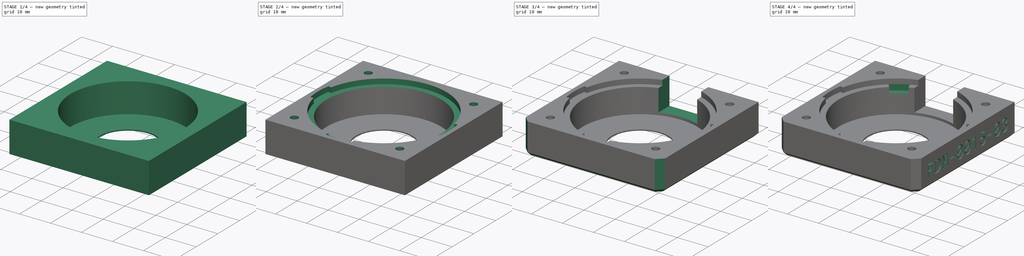
[diagram: build sequence overview — one tinted view per stage of 4, left to right]
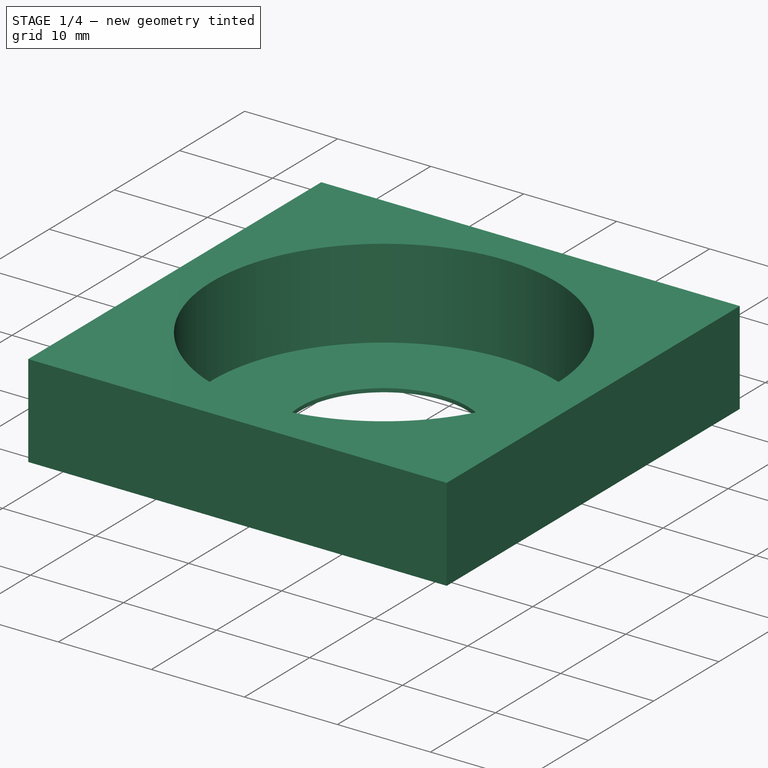
[diagram: stage 1 of 4 — iso view after this stage's code; geometry added in this stage tinted green]
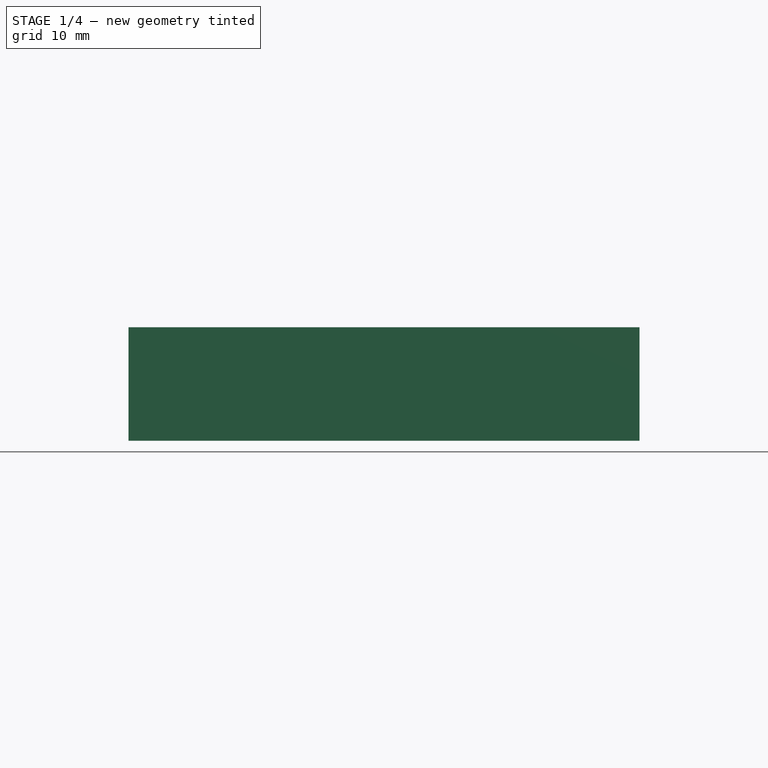
[diagram: stage 1 of 4 — front view after this stage's code; geometry added in this stage tinted green]
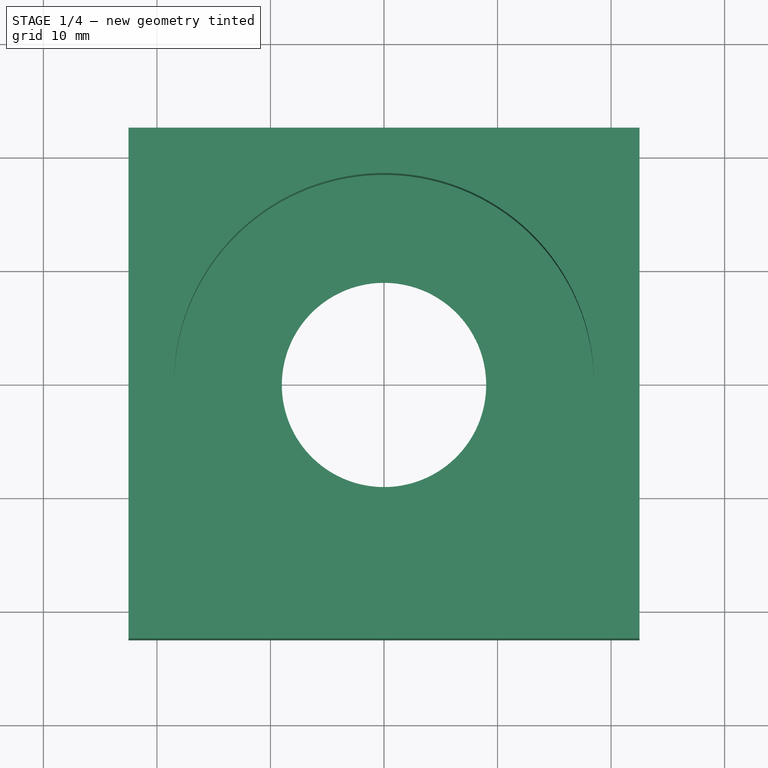
[diagram: stage 1 of 4 — top view after this stage's code; geometry added in this stage tinted green]
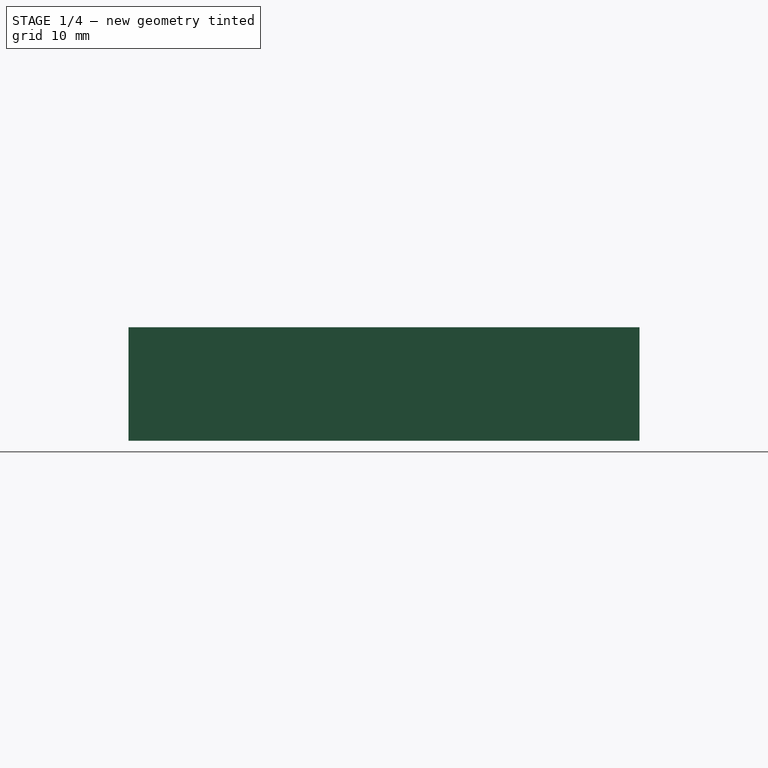
[diagram: stage 1 of 4 — right view after this stage's code; geometry added in this stage tinted green]
FCSTD DOCUMENT  (FreeCAD 0.19R24291 (Git))
Label: FDM-0015_down-light-mount
License: All rights reserved
LicenseURL: http://en.wikipedia.org/wiki/All_rights_reserved
objects: Sketcher::SketchObject×6, PartDesign::Pocket×4, PartDesign::Pad×2, PartDesign::Chamfer×2, PartDesign::Plane×2, PartDesign::Hole×1, Part::Part2DObjectPython×1, PartDesign::Body×1
note: 28 computed .brp shape members not serialized (recipe doc carries the construction recipe); baked Part::Feature solids carry a one-line shape summary decoded from their .brp

FEATURE [Sketcher::SketchObject] Sketch  label="Base"
  FullyConstrained = true
  MapMode = 5
  Support = -> [XY_Plane]
  sketch-geometry (5):
    g0: Circle CenterX=0 CenterY=0 CenterZ=0 NormalX=0 NormalY=0 NormalZ=1 AngleXU=0 Radius=18.5
    g1: LineSegment StartX=-22.5 StartY=22.5 StartZ=0 EndX=22.5 EndY=22.5 EndZ=0
    g2: LineSegment StartX=22.5 StartY=22.5 StartZ=0 EndX=22.5 EndY=-22.5 EndZ=0
    g3: LineSegment StartX=22.5 StartY=-22.5 StartZ=0 EndX=-22.5 EndY=-22.5 EndZ=0
    g4: LineSegment StartX=-22.5 StartY=-22.5 StartZ=0 EndX=-22.5 EndY=22.5 EndZ=0
  constraints (12):
    c: Coincident(g0,g-1)
    c: Coincident(g1,g2)
    c: Coincident(g2,g3)
    c: Coincident(g3,g4)
    c: Coincident(g4,g1)
    c: Horizontal(g3)
    c: Vertical(g2)
    c: Symmetric(g1,g1,g-2)
    c: Symmetric(g1,g3,g-1)
    c: DistanceX(g1,g1) = 45
    c: DistanceY(g4,g4) = 45
    c: Diameter(g0) = 37
FEATURE [PartDesign::Pad] Pad
  AllowMultiFace = false
  Direction = (0,0,1)
  Length = 10
  Length2 = 100
  Profile = -> Sketch
  Type = 0
FEATURE [Sketcher::SketchObject] Sketch001
  FullyConstrained = true
  MapMode = 5
  Support = -> [XY_Plane]
  sketch-geometry (2):
    g0: Circle CenterX=0 CenterY=0 CenterZ=0 NormalX=0 NormalY=0 NormalZ=1 AngleXU=0 Radius=18.5
    g1: Circle CenterX=0 CenterY=0 CenterZ=0 NormalX=0 NormalY=0 NormalZ=1 AngleXU=0 Radius=9
  constraints (4):
    c: Coincident(g0,g-1)
    c: Coincident(g1,g0)
    c: Diameter(g0) = 37
    c: Diameter(g1) = 18
FEATURE [PartDesign::Pad] Pad001
  AllowMultiFace = false
  BaseFeature = -> Pad
  Direction = (0,0,1)
  Length = 0.4
  Length2 = 100
  Profile = -> Sketch001
  Type = 0
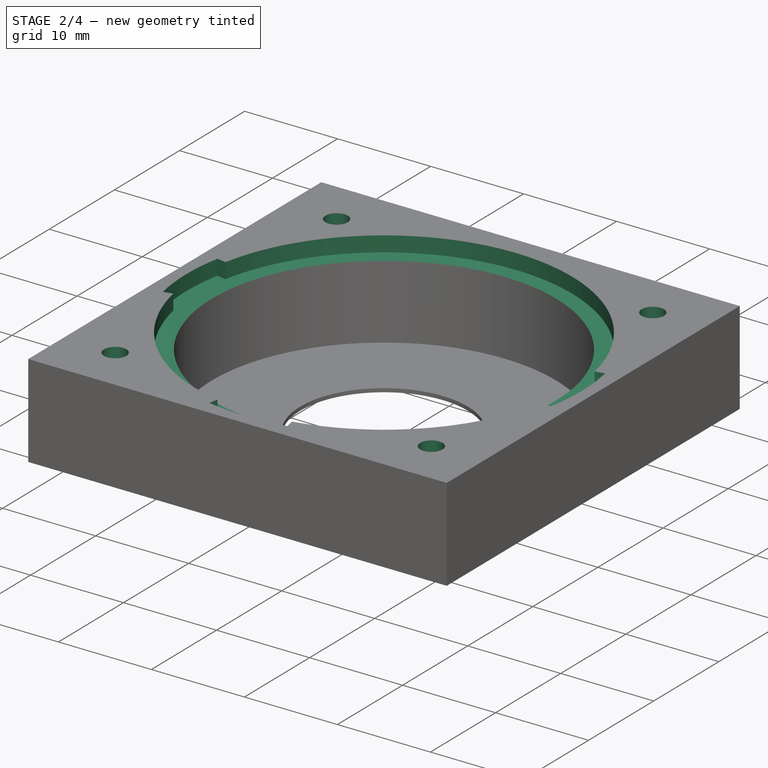
[diagram: stage 2 of 4 — iso view after this stage's code; geometry added in this stage tinted green]
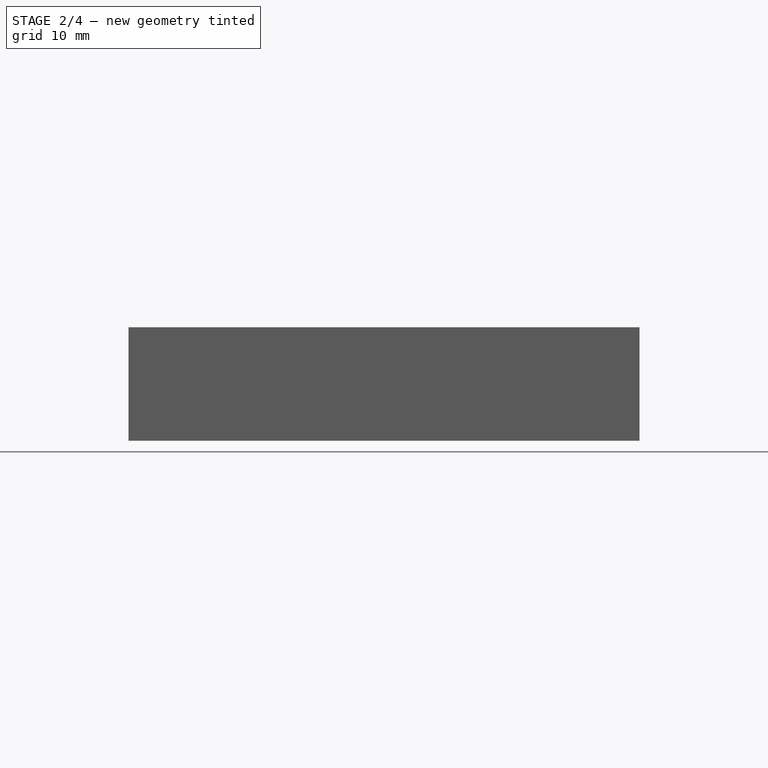
[diagram: stage 2 of 4 — front view after this stage's code; geometry added in this stage tinted green]
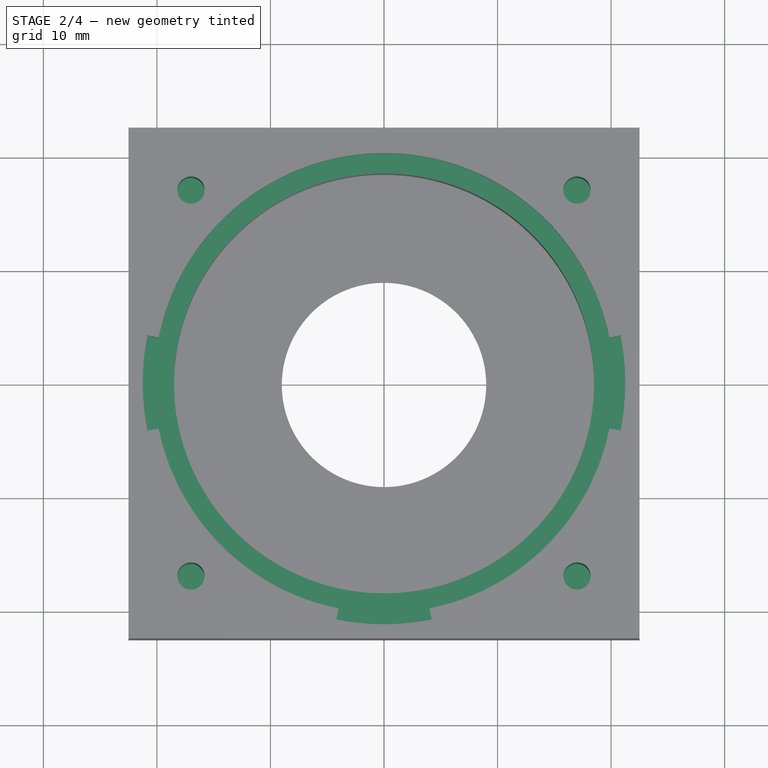
[diagram: stage 2 of 4 — top view after this stage's code; geometry added in this stage tinted green]
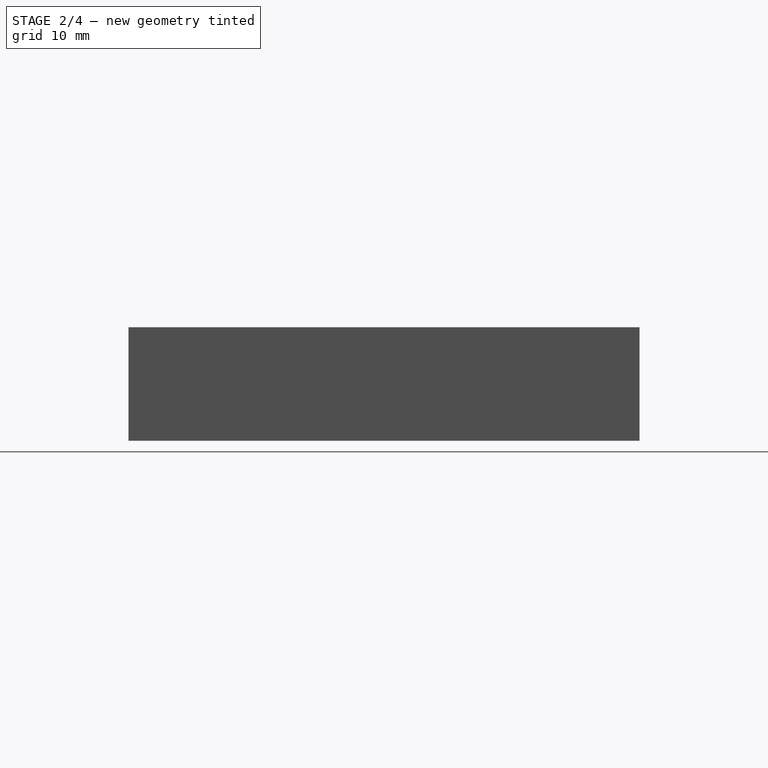
[diagram: stage 2 of 4 — right view after this stage's code; geometry added in this stage tinted green]
FEATURE [Sketcher::SketchObject] Sketch002  label="PCB"
  FullyConstrained = true
  MapMode = 2
  Placement = pos=(0,0,10) rot=(0,0,1;0rad)
  sketch-geometry (14):
    g0: Circle CenterX=0 CenterY=0 CenterZ=0 NormalX=0 NormalY=0 NormalZ=1 AngleXU=0 Radius=20.25
    g1: Circle CenterX=0 CenterY=0 CenterZ=0 NormalX=0 NormalY=0 NormalZ=1 AngleXU=0 Radius=21.25
    g2: ArcOfCircle CenterX=2e-16 CenterY=1e-16 CenterZ=0 NormalX=0 NormalY=0 NormalZ=1 AngleXU=0 Radius=20.25 StartAngle=0.198839 EndAngle=2.94275
    g3: ArcOfCircle CenterX=-3.4e-15 CenterY=-1e-16 CenterZ=0 NormalX=0 NormalY=0 NormalZ=1 AngleXU=0 Radius=20.25 StartAngle=3.34043 EndAngle=4.51355
    g4: ArcOfCircle CenterX=-8.6e-15 CenterY=4.7e-15 CenterZ=0 NormalX=0 NormalY=0 NormalZ=1 AngleXU=0 Radius=20.25 StartAngle=4.91123 EndAngle=6.08435
    g5: ArcOfCircle CenterX=-5.5e-14 CenterY=-5.8e-15 CenterZ=0 NormalX=0 NormalY=0 NormalZ=1 AngleXU=0 Radius=21.25 StartAngle=2.94275 EndAngle=3.34043
    g6: ArcOfCircle CenterX=4.79e-14 CenterY=-5.7e-15 CenterZ=0 NormalX=0 NormalY=0 NormalZ=1 AngleXU=0 Radius=21.25 StartAngle=6.08435 EndAngle=6.48202
    g7: ArcOfCircle CenterX=5.7e-15 CenterY=-6.9e-15 CenterZ=0 NormalX=0 NormalY=0 NormalZ=1 AngleXU=0 Radius=21.25 StartAngle=4.51355 EndAngle=4.91123
    g8: LineSegment StartX=-4.19753 StartY=-20.8313 StartZ=0 EndX=-4 EndY=-19.851 EndZ=0
    g9: LineSegment StartX=4.19753 StartY=-20.8313 StartZ=0 EndX=4 EndY=-19.851 EndZ=0
    g10: LineSegment StartX=-20.8313 StartY=-4.19753 StartZ=0 EndX=-19.851 EndY=-4 EndZ=0
    g11: LineSegment StartX=-20.8313 StartY=4.19753 StartZ=0 EndX=-19.851 EndY=4 EndZ=0
    g12: LineSegment StartX=19.851 StartY=4 StartZ=0 EndX=20.8313 EndY=4.19753 EndZ=0
    g13: LineSegment StartX=19.851 StartY=-4 StartZ=0 EndX=20.8313 EndY=-4.19753 EndZ=0
  constraints (46):
    c: Coincident(g0,g-1)
    c: Diameter(g0) = 40.5
    c: Coincident(g1,g0)
    c: Diameter(g1) = 42.5
    c: PointOnObject(g2,g0)
    c: PointOnObject(g2,g0)
    c: Tangent(g2,g0)
    c: PointOnObject(g3,g0)
    c: PointOnObject(g3,g0)
    c: Tangent(g3,g0)
    c: PointOnObject(g4,g0)
    c: PointOnObject(g4,g0)
    c: Tangent(g4,g0)
    c: PointOnObject(g5,g1)
    c: PointOnObject(g5,g1)
    c: Tangent(g5,g1)
    c: PointOnObject(g6,g1)
    c: PointOnObject(g6,g1)
    c: Tangent(g6,g1)
    c: PointOnObject(g7,g1)
    c: PointOnObject(g7,g1)
    c: Tangent(g7,g1)
    c: Coincident(g8,g7)
    c: Coincident(g8,g3)
    c: Coincident(g9,g7)
    c: Coincident(g9,g4)
    c: Coincident(g10,g5)
    c: Coincident(g10,g3)
    c: Coincident(g11,g5)
    c: Coincident(g11,g2)
    c: Coincident(g12,g2)
    c: Coincident(g12,g6)
    c: Coincident(g13,g4)
    c: Coincident(g13,g6)
    c: Distance(g3,g2) = 8
    c: Perpendicular(g3,g10)
    c: Perpendicular(g0,g11)
    c: DistanceY(g3,g2) = 4
    c: Horizontal(g3,g4)
    c: Perpendicular(g4,g13)
    c: Perpendicular(g2,g12)
    c: Horizontal(g2,g2)
    c: Perpendicular(g3,g8)
    c: Perpendicular(g4,g9)
    c: DistanceX(g3,g4) = 8
    c: DistanceX(g3,g-1) = 4
FEATURE [PartDesign::Pocket] Pocket  label="pkt_pcb"
  AllowMultiFace = false
  BaseFeature = -> Pad001
  Length = 1.65
  Length2 = 100
  Profile = -> Sketch002
  Type = 0
FEATURE [Sketcher::SketchObject] Sketch003
  FullyConstrained = true
  MapMode = 2
  Placement = pos=(0,0,10) rot=(0,0,1;0rad)
  sketch-geometry (8):
    g0: LineSegment StartX=-17 StartY=17 StartZ=0 EndX=17 EndY=17 EndZ=0
    g1: LineSegment StartX=17 StartY=17 StartZ=0 EndX=17 EndY=-17 EndZ=0
    g2: LineSegment StartX=17 StartY=-17 StartZ=0 EndX=-17 EndY=-17 EndZ=0
    g3: LineSegment StartX=-17 StartY=-17 StartZ=0 EndX=-17 EndY=17 EndZ=0
    g4: Circle CenterX=-17 CenterY=17 CenterZ=0 NormalX=0 NormalY=0 NormalZ=1 AngleXU=0 Radius=1
    g5: Circle CenterX=-17 CenterY=-17 CenterZ=0 NormalX=0 NormalY=0 NormalZ=1 AngleXU=0 Radius=1
    g6: Circle CenterX=17 CenterY=-17 CenterZ=0 NormalX=0 NormalY=0 NormalZ=1 AngleXU=0 Radius=1
    g7: Circle CenterX=17 CenterY=17 CenterZ=0 NormalX=0 NormalY=0 NormalZ=1 AngleXU=0 Radius=1
  constraints (18):
    c: Coincident(g0,g1)
    c: Coincident(g1,g2)
    c: Coincident(g2,g3)
    c: Coincident(g3,g0)
    c: Horizontal(g2)
    c: Vertical(g1)
    c: Symmetric(g0,g0,g-2)
    c: Symmetric(g0,g2,g-1)
    c: Equal(g0,g3)
    c: Coincident(g4,g0)
    c: Coincident(g5,g2)
    c: Coincident(g6,g1)
    c: Coincident(g7,g0)
    c: Diameter(g7) = 2
    c: DistanceX(g0,g0) = 34
    c: Equal(g5,g6)
    c: Equal(g6,g7)
    c: Equal(g7,g4)
FEATURE [Sketcher::SketchObject] Sketch004  label="JSTConnector"
  FullyConstrained = true
  MapMode = 2
  Placement = pos=(0,0,10) rot=(0,0,1;0rad)
  sketch-geometry (4):
    g0: LineSegment StartX=-6.25 StartY=0 StartZ=0 EndX=6.25 EndY=0 EndZ=0
    g1: LineSegment StartX=6.25 StartY=0 StartZ=0 EndX=6.25 EndY=25 EndZ=0
    g2: LineSegment StartX=6.25 StartY=25 StartZ=0 EndX=-6.25 EndY=25 EndZ=0
    g3: LineSegment StartX=-6.25 StartY=25 StartZ=0 EndX=-6.25 EndY=0 EndZ=0
  constraints (11):
    c: Coincident(g0,g1)
    c: Coincident(g1,g2)
    c: Coincident(g2,g3)
    c: Coincident(g3,g0)
    c: Horizontal(g0)
    c: Vertical(g1)
    c: Vertical(g3)
    c: PointOnObject(g0,g-1)
    c: DistanceX(g2,g2) = 12.5
    c: Symmetric(g2,g1,g-2)
    c: DistanceY(g3,g3) = 25
FEATURE [PartDesign::Hole] Hole
  BaseFeature = -> Pocket
  Depth = 8.5
  DepthType = 0
  Diameter = 2.4
  DrillForDepth = false
  DrillPoint = 0
  DrillPointAngle = 118
  HoleCutCountersinkAngle = 90
  HoleCutCustomValues = false
  HoleCutDepth = 0
  HoleCutDiameter = 6.1
  HoleCutType = 0
  ModelActualThread = false
  Profile = -> Sketch003
  Tapered = false
  TaperedAngle = 90
  ThreadAngle = 0
  ThreadClass = 0
  ThreadCutOffInner = 0
  ThreadCutOffOuter = 0
  ThreadDirection = 0
  ThreadFit = 0
  ThreadPitch = 0
  ThreadSize = 6
  ThreadType = 1
  Threaded = false
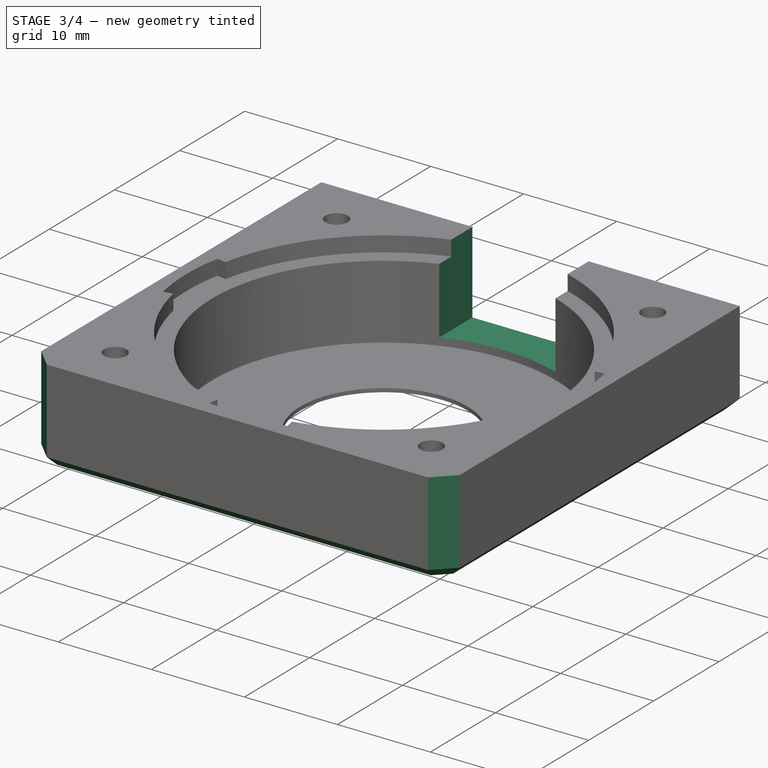
[diagram: stage 3 of 4 — iso view after this stage's code; geometry added in this stage tinted green]
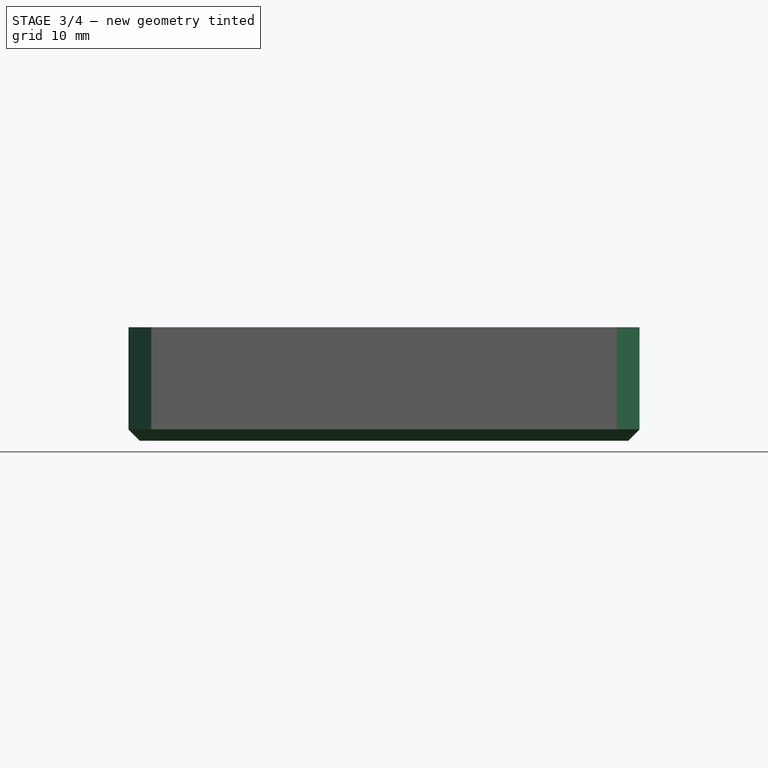
[diagram: stage 3 of 4 — front view after this stage's code; geometry added in this stage tinted green]
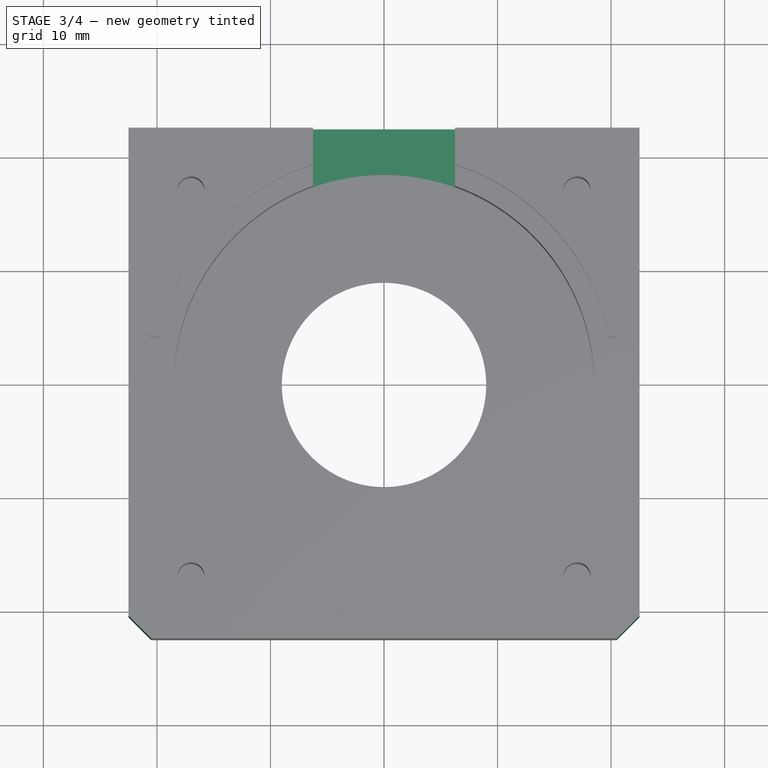
[diagram: stage 3 of 4 — top view after this stage's code; geometry added in this stage tinted green]
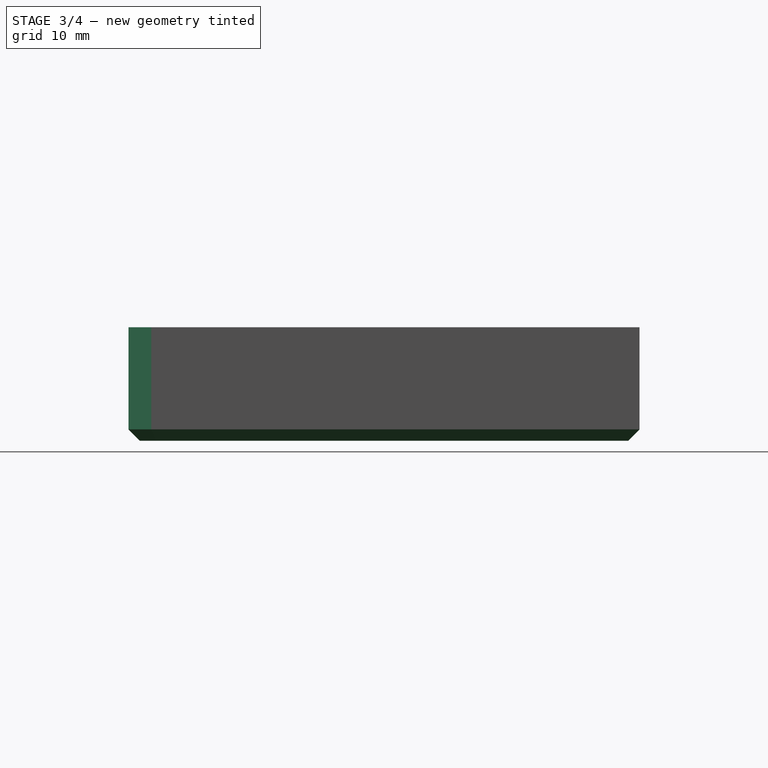
[diagram: stage 3 of 4 — right view after this stage's code; geometry added in this stage tinted green]
FEATURE [PartDesign::Chamfer] Chamfer
  Angle = 45
  Base = -> Hole [Edge8,Edge5]
  BaseFeature = -> Hole
  ChamferType = 0
  FlipDirection = false
  Size = 2
  Size2 = 1
  SupportTransform = false
FEATURE [PartDesign::Chamfer] Chamfer001
  Angle = 45
  Base = -> Chamfer [Edge1,Edge7,Edge5,Edge8,Edge9,Edge6]
  BaseFeature = -> Chamfer
  ChamferType = 0
  FlipDirection = false
  Size = 1
  Size2 = 1
  SupportTransform = false
FEATURE [PartDesign::Pocket] Pocket002  label="pkt_JSTConnector"
  AllowMultiFace = false
  BaseFeature = -> Chamfer001
  Length = 8.8
  Length2 = 100
  Profile = -> Sketch004
  Type = 0
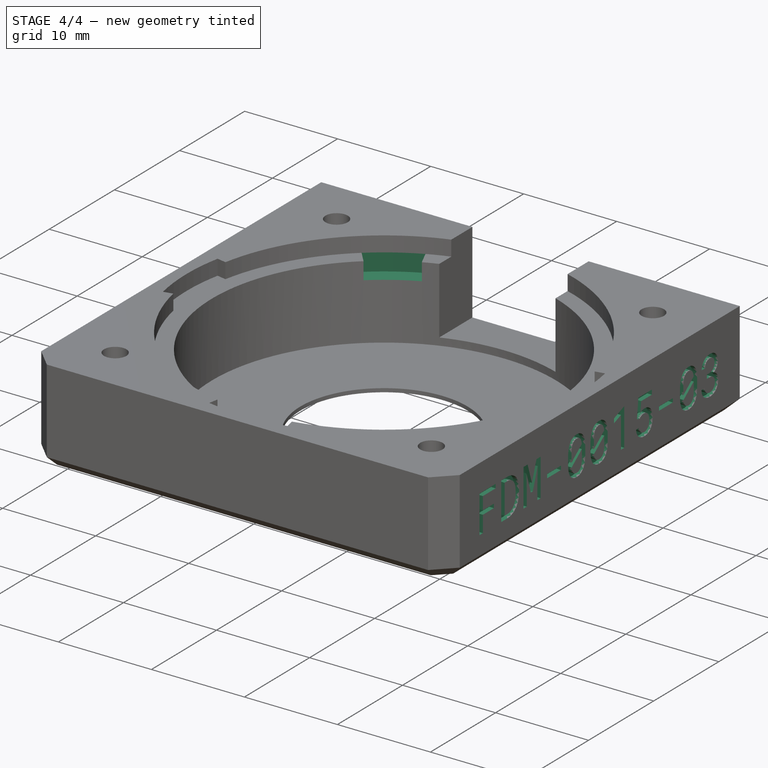
[diagram: stage 4 of 4 — iso view after this stage's code; geometry added in this stage tinted green]
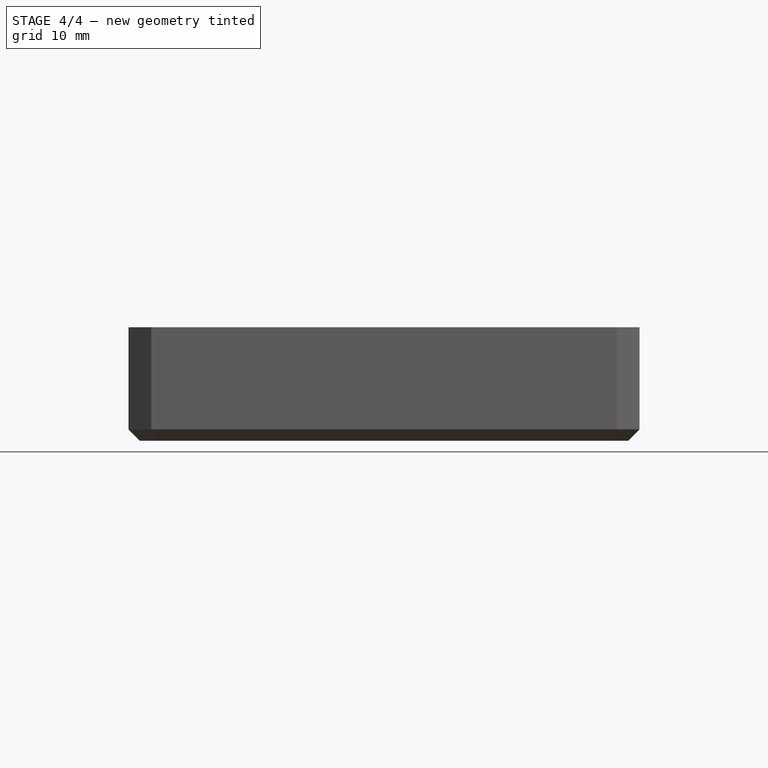
[diagram: stage 4 of 4 — front view after this stage's code; geometry added in this stage tinted green]
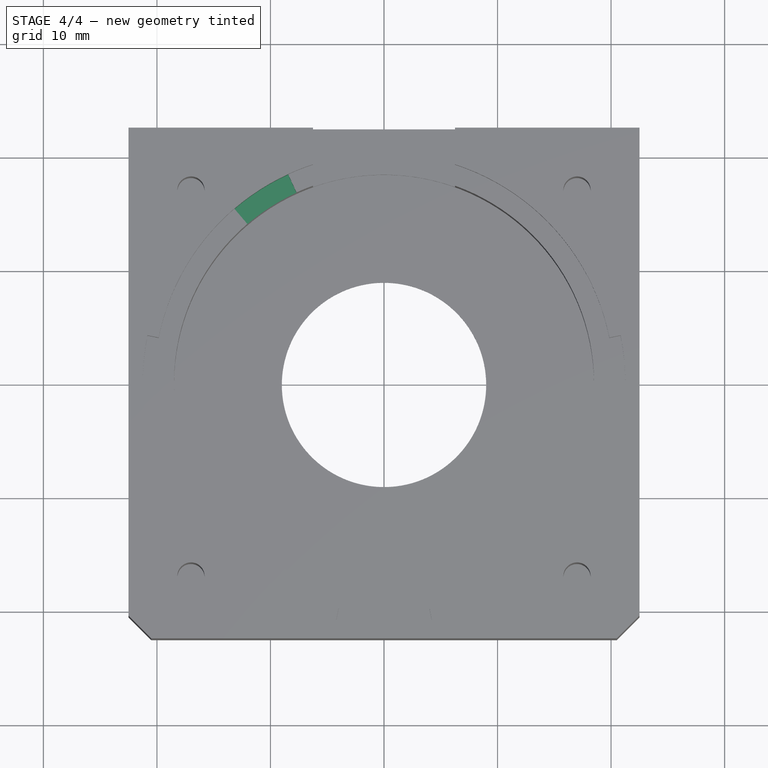
[diagram: stage 4 of 4 — top view after this stage's code; geometry added in this stage tinted green]
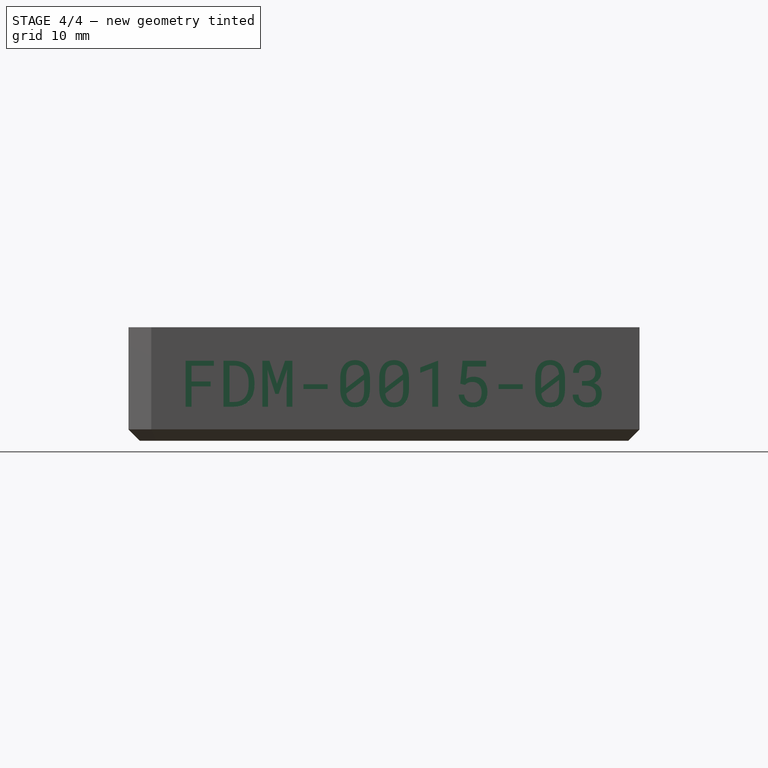
[diagram: stage 4 of 4 — right view after this stage's code; geometry added in this stage tinted green]
FEATURE [PartDesign::Plane] DatumPlane002  label="PrintPlane"
  Length = 60
  MapMode = 5
  Placement = pos=(0,0,0) rot=(1,0,0;3.14159rad)
  ResizeMode = 0
  Support = -> [Chamfer001]
  Width = 60
FEATURE [Sketcher::SketchObject] Sketch006  label="CutoutForCapacitor"
  AttachmentOffset = pos=(0,0,10) rot=(0,0,1;0rad)
  FullyConstrained = true
  MapMode = 5
  Placement = pos=(0,0,10) rot=(0,0,1;0rad)
  Support = -> [XY_Plane]
  sketch-geometry (6):
    g0: Circle CenterX=0 CenterY=0 CenterZ=0 NormalX=0 NormalY=0 NormalZ=1 AngleXU=0 Radius=20.25
    g1: Circle CenterX=0 CenterY=0 CenterZ=0 NormalX=0 NormalY=0 NormalZ=1 AngleXU=0 Radius=18
    g2: LineSegment StartX=-13.1759 StartY=15.3772 StartZ=0 EndX=-11.7119 EndY=13.6686 EndZ=0
    g3: LineSegment StartX=-8.4375 StartY=18.4085 StartZ=0 EndX=-7.5 EndY=16.3631 EndZ=0
    g4: ArcOfCircle CenterX=-2.2e-15 CenterY=1.36e-14 CenterZ=0 NormalX=0 NormalY=0 NormalZ=1 AngleXU=0 Radius=20.25 StartAngle=2.00057 EndAngle=2.27925
    g5: ArcOfCircle CenterX=-1.061e-13 CenterY=1.597e-13 CenterZ=0 NormalX=0 NormalY=0 NormalZ=1 AngleXU=0 Radius=18 StartAngle=2.00057 EndAngle=2.27925
  constraints (18):
    c: Coincident(g0,g-1)
    c: Diameter(g0) = 40.5
    c: Coincident(g1,g-1)
    c: Diameter(g1) = 36
    c: PointOnObject(g2,g0)
    c: PointOnObject(g2,g1)
    c: PointOnObject(g3,g0)
    c: PointOnObject(g3,g1)
    c: Coincident(g4,g2)
    c: Coincident(g4,g3)
    c: Tangent(g4,g0)
    c: Coincident(g5,g2)
    c: Coincident(g5,g3)
    c: Tangent(g5,g1)
    c: Perpendicular(g5,g3)
    c: Perpendicular(g5,g2)
    c: DistanceX(g3,g4) = 7.5
    c: Distance(g2,g3) = 5
FEATURE [PartDesign::Pocket] Pocket006  label="pkt_Capacitor"
  BaseFeature = -> Pocket002
  Length = 3.5
  Length2 = 100
  Profile = -> Sketch006
  Type = 0
FEATURE [PartDesign::Plane] DatumPlane
  Length = 60
  MapMode = 5
  Placement = pos=(22.5,0,0) rot=(0.57735,0.57735,0.57735;2.0944rad)
  ResizeMode = 0
  Support = -> [Pocket006]
  Width = 60
FEATURE [Part::Part2DObjectPython] ShapeString  label="PN"  # Draft 2D object (typed FeaturePython)
  AttachmentOffset = pos=(-18,3,0) rot=(0,0,1;0rad)
  FontFile = <path>
  MakeFace = true
  MapMode = 5
  Placement = pos=(22.5,-18,3) rot=(0.57735,0.57735,0.57735;2.0944rad)
  Size = 5
  String = FDM-0015-03
  Support = -> [DatumPlane]
  Tracking = 0
FEATURE [PartDesign::Pocket] Pocket007  label="pkt_partnumber"
  BaseFeature = -> Pocket006
  Length = 0.5
  Length2 = 100
  Profile = -> ShapeString
  Type = 0
FEATURE [PartDesign::Body] Body
  Group = -> [Sketch,Pad,Sketch001,Pad001,Sketch002,Pocket,Sketch003,Sketch004,Hole,Chamfer,Chamfer001,Pocket002,Sketch006,Pocket006,DatumPlane,ShapeString,Pocket007,DatumPlane002]
  Origin = -> Origin
  Tip = -> Pocket007
note: 1 file-system path scrubbed to <path> (originals preserved in the JSON sidecar)
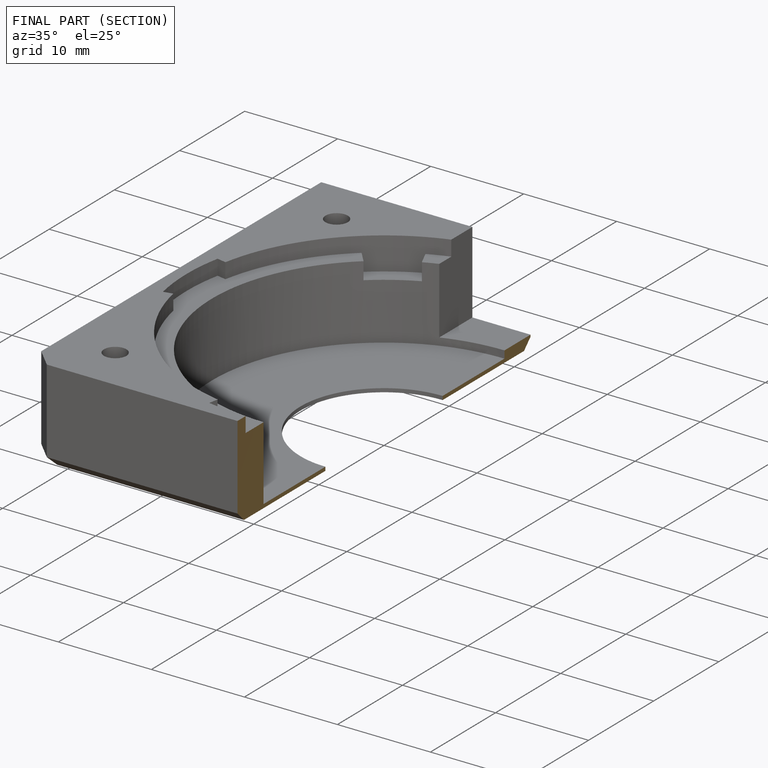
[diagram: finished part — half-section view (interior)]
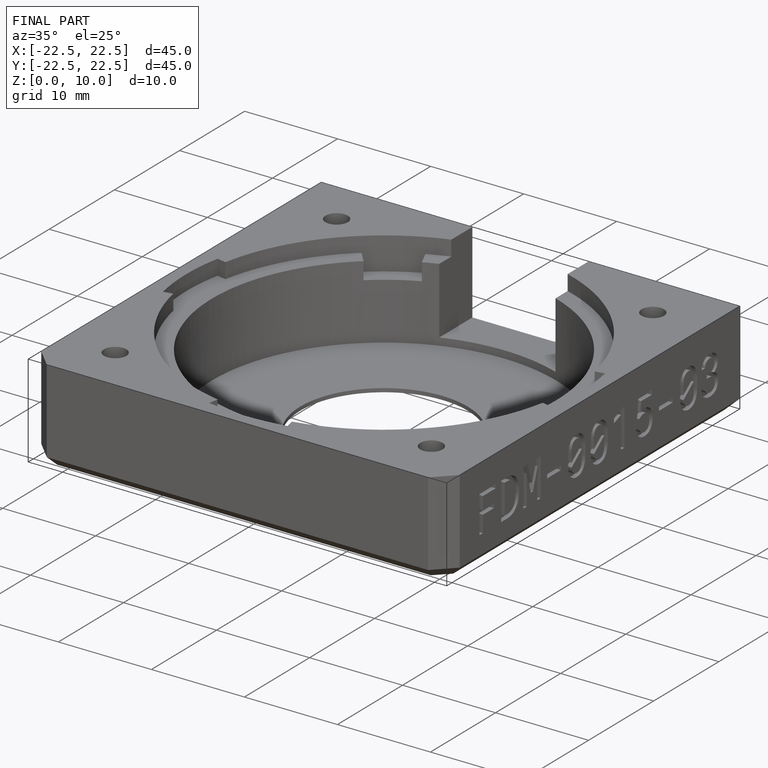
[diagram: finished part — iso view with bounding-box wireframe]
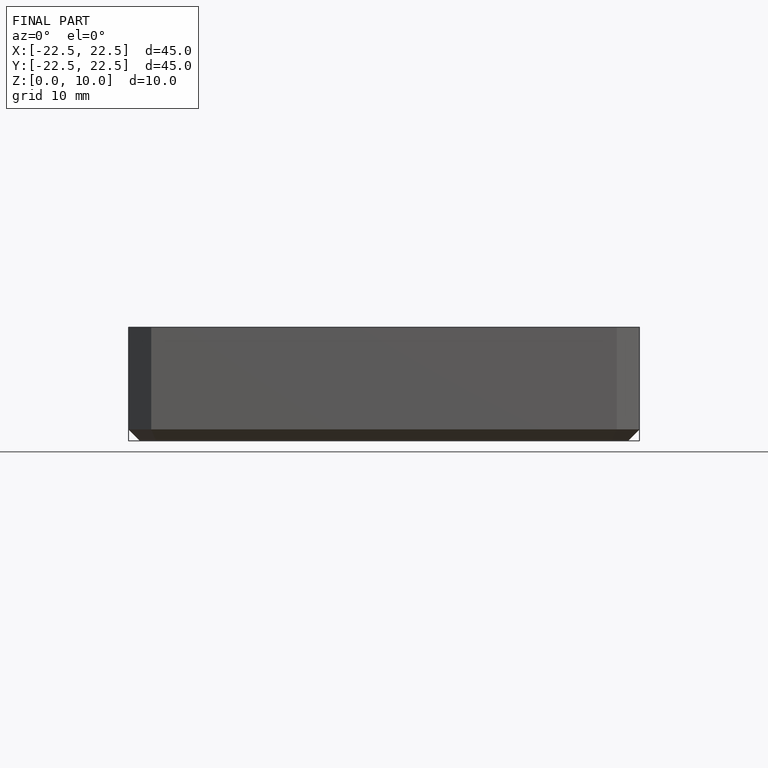
[diagram: finished part — front view with bounding-box wireframe]
